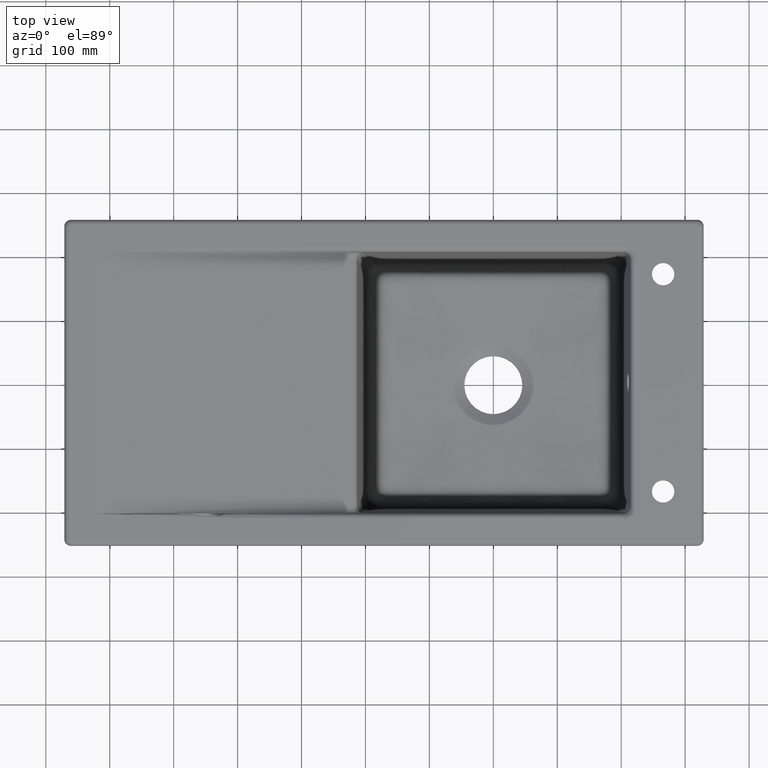
[diagram: clean part render]
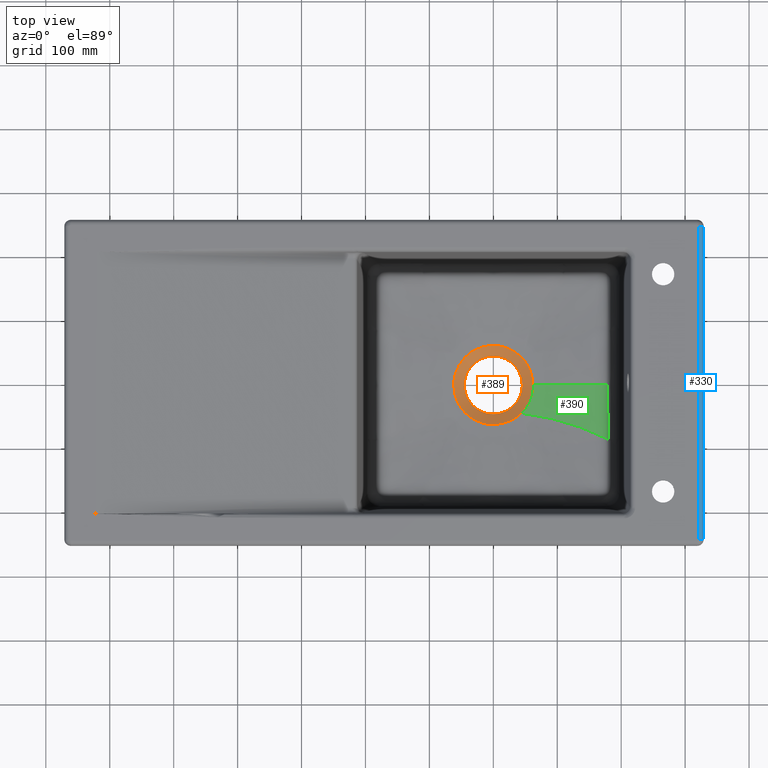
[diagram: same view with three faces highlighted in distinct colors, each labeled with its STEP entity id]
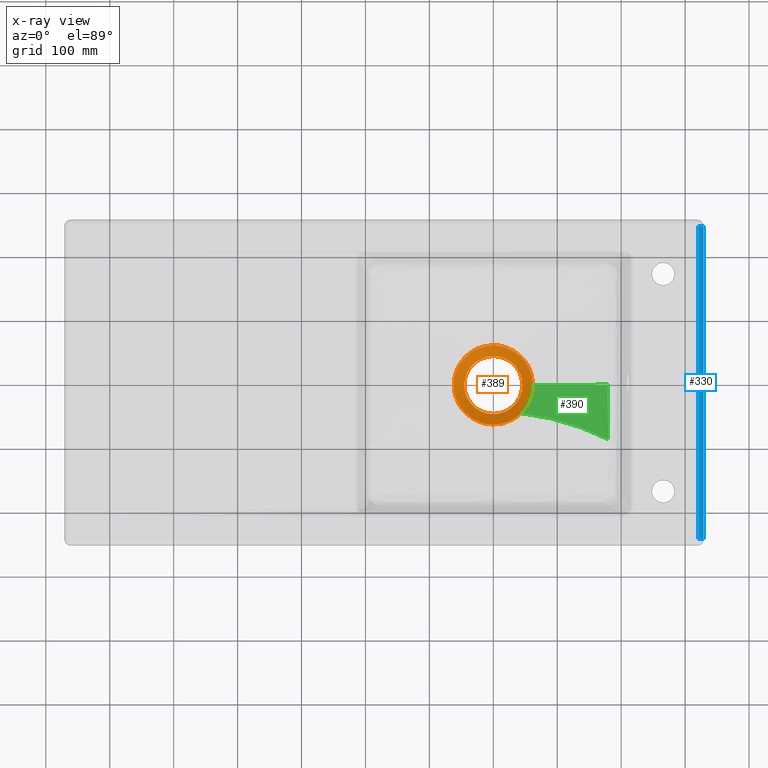
[diagram: x-ray of the same camera — body ghosted, the three highlighted faces saturated]
A machine part, top view with three faces highlighted in distinct colors.
The next image is the same camera in x-ray (body ghosted, the three faces saturated) — at least one of them is partly hidden behind the body in this view.
Their STEP definitions:

[orange] entity #389 — the highlighted conical surface has half-angle 60 deg.
#50=CONICAL_SURFACE('',#3366,64.2143207932127,59.9999999999986);
#304=FACE_BOUND('',#831,.T.);
#305=FACE_BOUND('',#832,.T.);
#389=ADVANCED_FACE('',(#304,#305),#50,.F.);
#831=EDGE_LOOP('',(#1730,#1731,#1732,#1733,#1734,#1735,#1736,#1737,#1738,
#1739,#1740,#1741));
#832=EDGE_LOOP('',(#1742,#1743,#1744));
#1164=B_SPLINE_CURVE_WITH_KNOTS('',3,(#14438,#14439,#14440,#14441,#14442,
#14443),.UNSPECIFIED.,.F.,.F.,(4,2,4),(0.,0.5,1.),.UNSPECIFIED.);
#1165=B_SPLINE_CURVE_WITH_KNOTS('',3,(#14446,#14447,#14448,#14449),
 .UNSPECIFIED.,.F.,.F.,(4,4),(0.,1.),.UNSPECIFIED.);
#1166=B_SPLINE_CURVE_WITH_KNOTS('',3,(#14451,#14452,#14453,#14454,#14455,
#14456,#14457,#14458,#14459,#14460,#14461,#14462,#14463,#14464,#14465,#14466),
 .UNSPECIFIED.,.F.,.F.,(4,2,2,2,2,2,2,4),(0.,0.25,0.374999999999999,0.437499999999999,
0.468749999999999,0.484374999999999,0.499999999999999,1.),.UNSPECIFIED.);
#1167=B_SPLINE_CURVE_WITH_KNOTS('',3,(#14468,#14469,#14470,#14471,#14472,
#14473),.UNSPECIFIED.,.F.,.F.,(4,2,4),(0.,0.5,1.),.UNSPECIFIED.);
#1168=B_SPLINE_CURVE_WITH_KNOTS('',3,(#14475,#14476,#14477,#14478),
 .UNSPECIFIED.,.F.,.F.,(4,4),(0.,1.),.UNSPECIFIED.);
#1169=B_SPLINE_CURVE_WITH_KNOTS('',3,(#14480,#14481,#14482,#14483,#14484,
#14485),.UNSPECIFIED.,.F.,.F.,(4,2,4),(0.,0.5,1.),.UNSPECIFIED.);
#1170=B_SPLINE_CURVE_WITH_KNOTS('',3,(#14487,#14488,#14489,#14490,#14491,
#14492),.UNSPECIFIED.,.F.,.F.,(4,2,4),(0.,0.5,1.),.UNSPECIFIED.);
#1171=B_SPLINE_CURVE_WITH_KNOTS('',3,(#14494,#14495,#14496,#14497),
 .UNSPECIFIED.,.F.,.F.,(4,4),(0.,1.),.UNSPECIFIED.);
#1172=B_SPLINE_CURVE_WITH_KNOTS('',3,(#14499,#14500,#14501,#14502,#14503,
#14504),.UNSPECIFIED.,.F.,.F.,(4,2,4),(0.,0.5,1.),.UNSPECIFIED.);
#1173=B_SPLINE_CURVE_WITH_KNOTS('',3,(#14506,#14507,#14508,#14509,#14510,
#14511),.UNSPECIFIED.,.F.,.F.,(4,2,4),(0.,0.5,1.),.UNSPECIFIED.);
#1174=B_SPLINE_CURVE_WITH_KNOTS('',3,(#14513,#14514,#14515,#14516),
 .UNSPECIFIED.,.F.,.F.,(4,4),(0.,1.),.UNSPECIFIED.);
#1175=B_SPLINE_CURVE_WITH_KNOTS('',3,(#14518,#14519,#14520,#14521,#14522,
#14523),.UNSPECIFIED.,.F.,.F.,(4,2,4),(0.,0.5,1.),.UNSPECIFIED.);
#1176=B_SPLINE_CURVE_WITH_KNOTS('',3,(#14524,#14525,#14526,#14527,#14528,
#14529,#14530,#14531,#14532,#14533,#14534,#14535,#14536,#14537,#14538,#14539,
#14540,#14541,#14542,#14543,#14544,#14545,#14546,#14547,#14548,#14549,#14550,
#14551),.UNSPECIFIED.,.F.,.F.,(4,2,2,2,2,2,2,2,2,2,2,2,2,4),(0.,0.0625000000000001,
0.125,0.1875,0.25,0.375,0.5,0.5625,0.625,0.6875,0.75,0.8125,0.875,1.),
 .UNSPECIFIED.);
#1177=B_SPLINE_CURVE_WITH_KNOTS('',3,(#14554,#14555,#14556,#14557,#14558,
#14559,#14560,#14561,#14562,#14563,#14564,#14565,#14566,#14567),
 .UNSPECIFIED.,.F.,.F.,(4,2,2,2,2,2,4),(0.,0.125,0.25,0.375,0.5,0.75,1.),
 .UNSPECIFIED.);
#1178=B_SPLINE_CURVE_WITH_KNOTS('',3,(#14569,#14570,#14571,#14572,#14573,
#14574,#14575,#14576,#14577,#14578,#14579,#14580,#14581,#14582),
 .UNSPECIFIED.,.F.,.F.,(4,2,2,2,2,2,4),(0.,0.125,0.25,0.375,0.5,0.75,1.),
 .UNSPECIFIED.);
#1730=ORIENTED_EDGE('',*,*,#2874,.T.);
#1731=ORIENTED_EDGE('',*,*,#2875,.T.);
#1732=ORIENTED_EDGE('',*,*,#2876,.T.);
#1733=ORIENTED_EDGE('',*,*,#2877,.T.);
#1734=ORIENTED_EDGE('',*,*,#2878,.T.);
#1735=ORIENTED_EDGE('',*,*,#2879,.T.);
#1736=ORIENTED_EDGE('',*,*,#2880,.T.);
#1737=ORIENTED_EDGE('',*,*,#2881,.T.);
#1738=ORIENTED_EDGE('',*,*,#2882,.T.);
#1739=ORIENTED_EDGE('',*,*,#2883,.T.);
#1740=ORIENTED_EDGE('',*,*,#2884,.T.);
#1741=ORIENTED_EDGE('',*,*,#2885,.T.);
#1742=ORIENTED_EDGE('',*,*,#2886,.F.);
#1743=ORIENTED_EDGE('',*,*,#2887,.F.);
#1744=ORIENTED_EDGE('',*,*,#2888,.F.);
#2485=VERTEX_POINT('',#14444);
#2486=VERTEX_POINT('',#14445);
#2487=VERTEX_POINT('',#14450);
#2488=VERTEX_POINT('',#14467);
#2489=VERTEX_POINT('',#14474);
#2490=VERTEX_POINT('',#14479);
#2491=VERTEX_POINT('',#14486);
#2492=VERTEX_POINT('',#14493);
#2493=VERTEX_POINT('',#14498);
#2494=VERTEX_POINT('',#14505);
#2495=VERTEX_POINT('',#14512);
#2496=VERTEX_POINT('',#14517);
#2497=VERTEX_POINT('',#14552);
#2498=VERTEX_POINT('',#14553);
#2499=VERTEX_POINT('',#14568);
#2874=EDGE_CURVE('',#2485,#2486,#1164,.T.);
#2875=EDGE_CURVE('',#2486,#2487,#1165,.T.);
#2876=EDGE_CURVE('',#2487,#2488,#1166,.T.);
#2877=EDGE_CURVE('',#2488,#2489,#1167,.T.);
#2878=EDGE_CURVE('',#2489,#2490,#1168,.T.);
#2879=EDGE_CURVE('',#2490,#2491,#1169,.T.);
#2880=EDGE_CURVE('',#2491,#2492,#1170,.T.);
#2881=EDGE_CURVE('',#2492,#2493,#1171,.T.);
#2882=EDGE_CURVE('',#2493,#2494,#1172,.T.);
#2883=EDGE_CURVE('',#2494,#2495,#1173,.T.);
#2884=EDGE_CURVE('',#2495,#2496,#1174,.T.);
#2885=EDGE_CURVE('',#2496,#2485,#1175,.T.);
#2886=EDGE_CURVE('',#2497,#2498,#1176,.T.);
#2887=EDGE_CURVE('',#2499,#2497,#1177,.T.);
#2888=EDGE_CURVE('',#2498,#2499,#1178,.T.);
#3366=AXIS2_PLACEMENT_3D('',#14583,#3688,#3689);
#3688=DIRECTION('',(0.,0.,1.));
#3689=DIRECTION('',(1.,0.,0.));
#14438=CARTESIAN_POINT('',(-1.88265974019929E-7,-61.9036886644955,-202.344280509982));
#14439=CARTESIAN_POINT('',(8.36353192122179,-61.9036876009832,-202.344281138686));
#14440=CARTESIAN_POINT('',(16.5378833643363,-60.1847311299929,-202.347243451509));
#14441=CARTESIAN_POINT('',(31.3170872285084,-53.9666881966917,-202.359091445392));
#14442=CARTESIAN_POINT('',(37.9197861210545,-49.4758176032974,-202.367977126451));
#14443=CARTESIAN_POINT('',(43.3707004929845,-44.0843591762912,-202.37982449163));
#14444=CARTESIAN_POINT('',(-1.88265961847955E-7,-61.9036886644952,-202.344280509982));
#14445=CARTESIAN_POINT('',(43.3709574328395,-44.0846185808438,-202.379613693715));
#14446=CARTESIAN_POINT('',(43.371237352179,-44.0849011828994,-202.379384044026));
#14447=CARTESIAN_POINT('',(43.6267926538458,-43.8322006845885,-202.379911765068));
#14448=CARTESIAN_POINT('',(43.88085054016,-43.5779736910981,-202.379865174244));
#14449=CARTESIAN_POINT('',(44.1332600318325,-43.3221309508692,-202.379342362706));
#14450=CARTESIAN_POINT('',(44.1335362637709,-43.3224039341373,-202.37911814388));
#14451=CARTESIAN_POINT('',(44.1338304324636,-43.3226946583929,-202.378879359562));
#14452=CARTESIAN_POINT('',(46.4791952420684,-40.9471791765669,-202.373313450244));
#14453=CARTESIAN_POINT('',(48.8704088795185,-38.1398717415593,-202.368325890522));
#14454=CARTESIAN_POINT('',(52.2636415915543,-33.1791343877657,-202.361712075331));
#14455=CARTESIAN_POINT('',(53.3615459469658,-31.4010818385916,-202.359652057666));
#14456=CARTESIAN_POINT('',(54.917792515254,-28.5412139984453,-202.356778912267));
#14457=CARTESIAN_POINT('',(55.4213845596,-27.5558520940142,-202.355857343984));
#14458=CARTESIAN_POINT('',(56.1484578510668,-26.0295506792861,-202.354529211833));
#14459=CARTESIAN_POINT('',(56.3860933273196,-25.5127451215762,-202.354095537829));
#14460=CARTESIAN_POINT('',(56.7347383363173,-24.7255051228912,-202.353458581891));
#14461=CARTESIAN_POINT('',(56.8496517879593,-24.4610868372878,-202.353248522423));
#14462=CARTESIAN_POINT('',(57.0767526416095,-23.9282486902741,-202.352832921844));
#14463=CARTESIAN_POINT('',(57.2036714979841,-23.6238634178021,-202.352600344085));
#14464=CARTESIAN_POINT('',(60.3726864179708,-15.8870234955181,-202.346784249636));
#14465=CARTESIAN_POINT('',(61.9042364670639,-7.88474771906582,-202.343964236114));
#14466=CARTESIAN_POINT('',(61.904236775166,1.60383890533372E-10,-202.343964058231));
#14467=CARTESIAN_POINT('',(61.9042367751656,5.56406201335751E-8,-202.343964058231));
#14468=CARTESIAN_POINT('',(61.9042367751659,1.60399052698456E-10,-202.343964058231));
#14469=CARTESIAN_POINT('',(61.9042364462802,8.56874357126657,-202.343964248113));
#14470=CARTESIAN_POINT('',(60.1026063185917,16.8308244395143,-202.346875165289));
#14471=CARTESIAN_POINT('',(53.8245179220538,31.5598637729739,-202.358518454228));
#14472=CARTESIAN_POINT('',(49.3594263477548,38.0280111607333,-202.367250825991));
#14473=CARTESIAN_POINT('',(44.133812495999,43.3226769174483,-202.378893925047));
#14474=CARTESIAN_POINT('',(44.1335362640601,43.3224039341804,-202.379118143873));
#14475=CARTESIAN_POINT('',(44.1332600321217,43.3221309509123,-202.3793423627));
#14476=CARTESIAN_POINT('',(43.8808505403715,43.5779736912228,-202.379865174237));
#14477=CARTESIAN_POINT('',(43.6267926539787,43.8322006847939,-202.379911765062));
#14478=CARTESIAN_POINT('',(43.3712373522322,44.0849011831845,-202.379384044019));
#14479=CARTESIAN_POINT('',(43.3709574328926,44.0846185811287,-202.379613693709));
#14480=CARTESIAN_POINT('',(43.3707004930024,44.0843591765407,-202.379824491652));
#14481=CARTESIAN_POINT('',(37.9197861896489,49.4758175339646,-202.367977127349));
#14482=CARTESIAN_POINT('',(31.3170873552541,53.9666881207755,-202.359091446723));
#14483=CARTESIAN_POINT('',(16.5378835063578,60.1847310889079,-202.347243452824));
#14484=CARTESIAN_POINT('',(8.36353201902543,61.9036875998058,-202.344281139551));
#14485=CARTESIAN_POINT('',(-1.88265931367278E-7,61.9036886648624,-202.344280509955));
#14486=CARTESIAN_POINT('',(-1.8826596358268E-7,61.903688664862,-202.344280509955));
#14487=CARTESIAN_POINT('',(1.88265966439054E-7,61.9036886648623,-202.344280509955));
#14488=CARTESIAN_POINT('',(-7.64999565766417,61.9036876895482,-202.344281086485));
#14489=CARTESIAN_POINT('',(-15.4948794565363,60.461655790977,-202.347244944204));
#14490=CARTESIAN_POINT('',(-30.3793719062796,54.5000501477242,-202.359099222018));
#14491=CARTESIAN_POINT('',(-37.4116332234582,49.9757138479702,-202.367989642114));
#14492=CARTESIAN_POINT('',(-43.3706775135529,44.0843359790729,-202.379843343398));
#14493=CARTESIAN_POINT('',(-43.3709574328926,44.0846185811287,-202.379613693709));
#14494=CARTESIAN_POINT('',(-43.3712373522321,44.0849011831844,-202.379384044019));
#14495=CARTESIAN_POINT('',(-43.6267926539788,43.8322006847938,-202.379911765062));
#14496=CARTESIAN_POINT('',(-43.8808505403717,43.5779736912226,-202.379865174237));
#14497=CARTESIAN_POINT('',(-44.1332600321219,43.322130950912,-202.3793423627));
#14498=CARTESIAN_POINT('',(-44.1338124959988,43.3226769174483,-202.378893925047));
#14499=CARTESIAN_POINT('',(-44.1338100762015,43.3226745252987,-202.378895889536));
#14500=CARTESIAN_POINT('',(-49.3594231477386,38.0280097048696,-202.367252732434));
#14501=CARTESIAN_POINT('',(-53.8245145052489,31.5598631716852,-202.35852031706));
#14502=CARTESIAN_POINT('',(-60.102602961566,16.8308247408874,-202.346876969771));
#14503=CARTESIAN_POINT('',(-61.9042333540786,8.5687439072698,-202.343966037856));
#14504=CARTESIAN_POINT('',(-61.9042336757684,-5.56331596816309E-8,-202.343965847669));
#14505=CARTESIAN_POINT('',(-61.9042367751658,-5.56330457016154E-8,-202.343964058231));
#14506=CARTESIAN_POINT('',(-61.9042367751658,5.56406607746614E-8,-202.343964058231));
#14507=CARTESIAN_POINT('',(-61.9042364297653,-9.16367025133379,-202.34396426239));
#14508=CARTESIAN_POINT('',(-59.8537454700193,-17.6954641567136,-202.346873565385));
#14509=CARTESIAN_POINT('',(-53.3639973737805,-32.3324800493704,-202.358510369049));
#14510=CARTESIAN_POINT('',(-48.9430951032937,-38.4521694787327,-202.367237869718));
#14511=CARTESIAN_POINT('',(-44.1338364546742,-43.3227006149232,-202.378874469223));
#14512=CARTESIAN_POINT('',(-44.1332600318336,-43.3221309508681,-202.379342362706));
#14513=CARTESIAN_POINT('',(-44.1332600318336,-43.3221309508681,-202.379342362706));
#14514=CARTESIAN_POINT('',(-43.8808505401608,-43.5779736910975,-202.379865174244));
#14515=CARTESIAN_POINT('',(-43.6267926538463,-43.8322006845883,-202.379911765068));
#14516=CARTESIAN_POINT('',(-43.3712373521791,-44.0849011828996,-202.379384044026));
#14517=CARTESIAN_POINT('',(-43.3706775135,-44.0843359787883,-202.379843343404));
#14518=CARTESIAN_POINT('',(-43.3706775134998,-44.084335978788,-202.379843343405));
#14519=CARTESIAN_POINT('',(-37.4116321984503,-49.9757148618976,-202.367989639708));
#14520=CARTESIAN_POINT('',(-30.379370003194,-54.5000512154374,-202.359099218408));
#14521=CARTESIAN_POINT('',(-15.4948773434547,-60.4616563386847,-202.3472449406));
#14522=CARTESIAN_POINT('',(-7.64999421427678,-61.9036876933712,-202.344281084093));
#14523=CARTESIAN_POINT('',(1.88265956372801E-7,-61.903688664495,-202.344280509982));
#14524=CARTESIAN_POINT('',(3.46944695195361E-15,45.3567920680275,-211.897635714391));
#14525=CARTESIAN_POINT('',(-2.99683279812407,45.3567920680275,-211.897635714391));
#14526=CARTESIAN_POINT('',(-5.94320341609092,45.0608758249211,-211.898705126345));
#14527=CARTESIAN_POINT('',(-11.7405696183107,43.9097546240423,-211.898047465183));
#14528=CARTESIAN_POINT('',(-14.6218532802367,43.0405954393387,-211.896275953556));
#14529=CARTESIAN_POINT('',(-20.1149810096914,40.7641091184574,-211.896062090749));
#14530=CARTESIAN_POINT('',(-22.7186770417809,39.3686418594004,-211.897592721988));
#14531=CARTESIAN_POINT('',(-27.6485495015814,36.0780515671639,-211.897339121883));
#14532=CARTESIAN_POINT('',(-29.9848513555898,34.1647609885166,-211.895530177706));
#14533=CARTESIAN_POINT('',(-36.2605801017327,27.8885950196087,-211.895384736098));
#14534=CARTESIAN_POINT('',(-39.6393419985524,22.8292585563353,-211.895549536245));
#14535=CARTESIAN_POINT('',(-44.1637010316131,11.9171289816015,-211.895562444626));
#14536=CARTESIAN_POINT('',(-45.3559032802043,5.94929081243557,-211.895521984392));
#14537=CARTESIAN_POINT('',(-45.3627981730021,-2.92245686371152,-211.895469968324));
#14538=CARTESIAN_POINT('',(-45.0664557391833,-5.92603838326588,-211.897190651218));
#14539=CARTESIAN_POINT('',(-43.9110786713437,-11.7436406132421,-211.897237995483));
#14540=CARTESIAN_POINT('',(-43.0586144889394,-14.5719414241422,-211.895588974647));
#14541=CARTESIAN_POINT('',(-40.7903409432615,-20.0635015893152,-211.895523732354));
#14542=CARTESIAN_POINT('',(-39.368330335055,-22.7196452604965,-211.89718317421));
#14543=CARTESIAN_POINT('',(-36.0865742668532,-27.6371823516067,-211.89713877266));
#14544=CARTESIAN_POINT('',(-34.2153991821405,-29.9307708052452,-211.895449204583));
#14545=CARTESIAN_POINT('',(-29.984900726705,-34.1678246316744,-211.895513293648));
#14546=CARTESIAN_POINT('',(-27.6871760124419,-36.0477448471309,-211.897322531238));
#14547=CARTESIAN_POINT('',(-22.7758011318619,-39.3349496702638,-211.89760410522));
#14548=CARTESIAN_POINT('',(-20.1278247039291,-40.7579156970124,-211.896067503726));
#14549=CARTESIAN_POINT('',(-11.8830838734998,-44.1773444538666,-211.896370791433));
#14550=CARTESIAN_POINT('',(-5.99245094365111,-45.3567920677067,-211.897635714391));
#14551=CARTESIAN_POINT('',(-6.93889390390723E-15,-45.3567920677067,-211.897635714391));
#14552=CARTESIAN_POINT('',(3.46944695195361E-15,45.3567920680275,-211.897635714391));
#14553=CARTESIAN_POINT('',(-6.93889390390723E-15,-45.3567920677067,-211.897635714391));
#14554=CARTESIAN_POINT('',(45.3567920678671,1.60385593694912E-10,-211.897635714391));
#14555=CARTESIAN_POINT('',(45.3567920678671,2.99553465493257,-211.897635714391));
#14556=CARTESIAN_POINT('',(45.0611289265102,5.94065027945199,-211.898704658256));
#14557=CARTESIAN_POINT('',(43.9109971155661,11.735588870177,-211.898048786942));
#14558=CARTESIAN_POINT('',(43.0426082924653,14.6156515258695,-211.896280709096));
#14559=CARTESIAN_POINT('',(40.7680361989905,20.1069126832888,-211.896043229448));
#14560=CARTESIAN_POINT('',(39.3737382437693,22.7097942398729,-211.897556171804));
#14561=CARTESIAN_POINT('',(36.085911683789,27.6382757090165,-211.897293391531));
#14562=CARTESIAN_POINT('',(34.1741149324592,29.9741642217286,-211.895493740787));
#14563=CARTESIAN_POINT('',(27.9025348221364,36.2492591422015,-211.895474174389));
#14564=CARTESIAN_POINT('',(22.8466397961727,39.6281379596469,-211.895958895935));
#14565=CARTESIAN_POINT('',(11.9412086784092,44.1554345170654,-211.89636242347));
#14566=CARTESIAN_POINT('',(5.98921917181442,45.3567920680275,-211.897635714391));
#14567=CARTESIAN_POINT('',(-4.50979587693612E-15,45.3567920680275,-211.897635714391));
#14568=CARTESIAN_POINT('',(45.3567920678671,1.60385593694912E-10,-211.897635714391));
#14569=CARTESIAN_POINT('',(-6.93889390390723E-15,-45.3567920677067,-211.897635714391));
#14570=CARTESIAN_POINT('',(2.99553465477218,-45.3567920677067,-211.897635714391));
#14571=CARTESIAN_POINT('',(5.94065027929159,-45.0611289263498,-211.898704658256));
#14572=CARTESIAN_POINT('',(11.7355888700167,-43.9109971154057,-211.898048786942));
#14573=CARTESIAN_POINT('',(14.6156515257091,-43.0426082923048,-211.896280709096));
#14574=CARTESIAN_POINT('',(20.1069126831284,-40.7680361988301,-211.896043229448));
#14575=CARTESIAN_POINT('',(22.7097942397125,-39.3737382436089,-211.897556171804));
#14576=CARTESIAN_POINT('',(27.638275708856,-36.0859116836285,-211.897293391531));
#14577=CARTESIAN_POINT('',(29.9741642215682,-34.1741149322987,-211.895493740787));
#14578=CARTESIAN_POINT('',(36.2492591420411,-27.9025348219759,-211.895474174389));
#14579=CARTESIAN_POINT('',(39.6281379594865,-22.8466397960123,-211.895958895935));
#14580=CARTESIAN_POINT('',(44.155434516905,-11.9412086782488,-211.89636242347));
#14581=CARTESIAN_POINT('',(45.3567920678671,-5.98921917165402,-211.897635714391));
#14582=CARTESIAN_POINT('',(45.3567920678671,1.60385593694912E-10,-211.897635714391));
#14583=CARTESIAN_POINT('',(0.,1.60399052698456E-10,-201.010236428561));

[blue] entity #330 — the highlighted cylindrical surface (edge-blend (fillet) strip) has radius 8 mm, axis along (-0, -1, -0).
#195=CYLINDRICAL_SURFACE('',#3340,7.99999999999998);
#243=CIRCLE('',#3338,7.99999999999998);
#244=CIRCLE('',#3339,7.99999999999998);
#330=ADVANCED_FACE('',(#572),#195,.T.);
#572=FACE_OUTER_BOUND('',#769,.T.);
#769=EDGE_LOOP('',(#1418,#1419,#1420,#1421));
#1418=ORIENTED_EDGE('',*,*,#2645,.F.);
#1419=ORIENTED_EDGE('',*,*,#2706,.F.);
#1420=ORIENTED_EDGE('',*,*,#2703,.T.);
#1421=ORIENTED_EDGE('',*,*,#2707,.F.);
#2333=VERTEX_POINT('',#4505);
#2334=VERTEX_POINT('',#4507);
#2378=VERTEX_POINT('',#4866);
#2379=VERTEX_POINT('',#4867);
#2645=EDGE_CURVE('',#2333,#2334,#3100,.T.);
#2703=EDGE_CURVE('',#2378,#2379,#3113,.T.);
#2706=EDGE_CURVE('',#2378,#2333,#243,.T.);
#2707=EDGE_CURVE('',#2334,#2379,#244,.T.);
#3100=LINE('',#4506,#3219);
#3113=LINE('',#4865,#3232);
#3219=VECTOR('',#3551,1.);
#3232=VECTOR('',#3608,1.);
#3338=AXIS2_PLACEMENT_3D('',#4871,#3613,#3614);
#3339=AXIS2_PLACEMENT_3D('',#4872,#3615,#3616);
#3340=AXIS2_PLACEMENT_3D('',#4873,#3617,#3618);
#3551=DIRECTION('',(0.,1.,0.));
#3608=DIRECTION('',(0.,1.,0.));
#3613=DIRECTION('',(5.92271641864617E-15,-1.,5.92271641864701E-15));
#3614=DIRECTION('',(0.,-6.93889390390725E-15,-1.));
#3615=DIRECTION('',(5.92271641864617E-15,1.,5.92271641864701E-15));
#3616=DIRECTION('',(0.,-6.93889390390725E-15,1.));
#3617=DIRECTION('',(-5.92271641864617E-15,-1.,-5.92271641864701E-15));
#3618=DIRECTION('',(0.,6.93889390390725E-15,-1.));
#4505=CARTESIAN_POINT('',(320.999999999999,-244.999999999991,0.));
#4506=CARTESIAN_POINT('',(320.999999999999,0.,0.));
#4507=CARTESIAN_POINT('',(320.999999999999,244.999999999991,0.));
#4865=CARTESIAN_POINT('',(328.999999999999,0.,-8.));
#4866=CARTESIAN_POINT('',(328.999999999999,-244.999999999991,-8.));
#4867=CARTESIAN_POINT('',(328.999999999999,244.999999999991,-8.));
#4871=CARTESIAN_POINT('',(320.999999999999,-244.999999999991,-8.));
#4872=CARTESIAN_POINT('',(320.999999999999,244.999999999991,-8.));
#4873=CARTESIAN_POINT('',(320.999999999999,244.999999999991,-8.));

[green] entity #390 — the highlighted face is a freeform B-spline surface patch.
#73=B_SPLINE_SURFACE_WITH_KNOTS('',3,3,((#14626,#14627,#14628,#14629,#14630,
#14631,#14632),(#14633,#14634,#14635,#14636,#14637,#14638,#14639),(#14640,
#14641,#14642,#14643,#14644,#14645,#14646),(#14647,#14648,#14649,#14650,
#14651,#14652,#14653),(#14654,#14655,#14656,#14657,#14658,#14659,#14660),
(#14661,#14662,#14663,#14664,#14665,#14666,#14667),(#14668,#14669,#14670,
#14671,#14672,#14673,#14674),(#14675,#14676,#14677,#14678,#14679,#14680,
#14681),(#14682,#14683,#14684,#14685,#14686,#14687,#14688),(#14689,#14690,
#14691,#14692,#14693,#14694,#14695),(#14696,#14697,#14698,#14699,#14700,
#14701,#14702),(#14703,#14704,#14705,#14706,#14707,#14708,#14709),(#14710,
#14711,#14712,#14713,#14714,#14715,#14716),(#14717,#14718,#14719,#14720,
#14721,#14722,#14723)),.UNSPECIFIED.,.F.,.F.,.F.,(4,1,1,1,1,1,1,1,1,1,1,
4),(4,1,1,1,4),(0.,0.151981090785215,0.227971636177822,0.30396218157043,
0.455943272355645,0.607924363140859,0.683914908533467,0.759905453926074,
0.835895999318682,0.911886544711289,0.987877090103896,1.),(0.,0.25,0.5,
0.75,1.),.UNSPECIFIED.);
#390=ADVANCED_FACE('',(#628),#73,.F.);
#628=FACE_OUTER_BOUND('',#833,.T.);
#833=EDGE_LOOP('',(#1745,#1746,#1747,#1748));
#1139=B_SPLINE_CURVE_WITH_KNOTS('',3,(#12702,#12703,#12704,#12705,#12706,
#12707,#12708,#12709,#12710,#12711,#12712,#12713,#12714),.UNSPECIFIED.,
 .F.,.F.,(4,1,1,1,1,1,1,1,1,1,4),(0.,0.150343013374769,0.228479647782816,
0.306616282190863,0.462889551006956,0.619162819823049,0.697299454231096,
0.775436088639143,0.85357272304719,0.931709357455236,1.),.UNSPECIFIED.);
#1179=B_SPLINE_CURVE_WITH_KNOTS('',3,(#14584,#14585,#14586,#14587,#14588,
#14589),.UNSPECIFIED.,.F.,.F.,(4,2,4),(0.,0.5,1.),.UNSPECIFIED.);
#1180=B_SPLINE_CURVE_WITH_KNOTS('',3,(#14591,#14592,#14593,#14594,#14595,
#14596,#14597,#14598,#14599,#14600,#14601,#14602,#14603,#14604,#14605,#14606,
#14607,#14608),.UNSPECIFIED.,.F.,.F.,(4,1,1,1,1,1,1,1,1,1,1,1,1,1,1,4),
(0.,0.00623639606332548,0.0831990342017759,0.160161672340227,0.237124310478676,
0.314086948617127,0.391049586755577,0.544974863032478,0.621937501170929,
0.698900139309379,0.775862777447829,0.85282541558628,0.92978805372473,0.968269372793956,
0.987510032328568,1.),.UNSPECIFIED.);
#1181=B_SPLINE_CURVE_WITH_KNOTS('',3,(#14610,#14611,#14612,#14613,#14614,
#14615,#14616,#14617,#14618,#14619,#14620,#14621,#14622,#14623,#14624,#14625),
 .UNSPECIFIED.,.F.,.F.,(4,2,2,2,1,1,2,2,4),(0.,0.249999999999999,0.374999999999999,
0.437499999999998,0.468749999999998,0.484374999999998,0.492187499999998,
0.499999999999998,1.),.UNSPECIFIED.);
#1745=ORIENTED_EDGE('',*,*,#2836,.F.);
#1746=ORIENTED_EDGE('',*,*,#2889,.T.);
#1747=ORIENTED_EDGE('',*,*,#2890,.F.);
#1748=ORIENTED_EDGE('',*,*,#2891,.T.);
#2464=VERTEX_POINT('',#12701);
#2465=VERTEX_POINT('',#12715);
#2500=VERTEX_POINT('',#14590);
#2501=VERTEX_POINT('',#14609);
#2836=EDGE_CURVE('',#2464,#2465,#1139,.T.);
#2889=EDGE_CURVE('',#2464,#2500,#1179,.T.);
#2890=EDGE_CURVE('',#2501,#2500,#1180,.T.);
#2891=EDGE_CURVE('',#2501,#2465,#1181,.T.);
#12701=CARTESIAN_POINT('',(63.1858679577877,2.31111593326468E-30,-201.949998314732));
#12702=CARTESIAN_POINT('',(63.1858679577878,-7.50863350817281E-15,-201.949998314732));
#12703=CARTESIAN_POINT('',(68.9818436396874,-7.20621163702296E-15,-201.526989421706));
#12704=CARTESIAN_POINT('',(77.7888177583028,-6.74661433980821E-15,-200.866456742546));
#12705=CARTESIAN_POINT('',(89.6070952629309,-6.12984161652854E-15,-199.972840680946));
#12706=CARTESIAN_POINT('',(101.653832222786,-5.50113991226928E-15,-199.060413003921));
#12707=CARTESIAN_POINT('',(116.71253259182,-4.71526278194509E-15,-197.923548080587));
#12708=CARTESIAN_POINT('',(131.771251008055,-3.92938565162091E-15,-196.786914877295));
#12709=CARTESIAN_POINT('',(143.817974118648,-3.30068394736165E-15,-195.874271456579));
#12710=CARTESIAN_POINT('',(152.853062360606,-2.82915766916689E-15,-195.190412403385));
#12711=CARTESIAN_POINT('',(161.888368231791,-2.35763139097214E-15,-194.50946880392));
#12712=CARTESIAN_POINT('',(170.545640580144,-1.90591077727609E-15,-193.876160880833));
#12713=CARTESIAN_POINT('',(176.186875201067,-1.61136558964519E-15,-193.415617226796));
#12714=CARTESIAN_POINT('',(178.818422309237,-1.47399582807909E-15,-193.208684012918));
#12715=CARTESIAN_POINT('',(178.818422301757,-6.381641979994E-5,-193.208684013098));
#14584=CARTESIAN_POINT('',(63.1858679577878,7.50863350817281E-15,-201.949998314732));
#14585=CARTESIAN_POINT('',(63.1858648664242,-9.63708447045764,-201.949998723893));
#14586=CARTESIAN_POINT('',(60.980837038619,-18.4835036673966,-201.952850533776));
#14587=CARTESIAN_POINT('',(54.2870879528761,-33.4128878235489,-201.962289141155));
#14588=CARTESIAN_POINT('',(49.8217497477848,-39.5197079104937,-201.968985909792));
#14589=CARTESIAN_POINT('',(45.1415329139632,-44.3179875131438,-201.978138993772));
#14590=CARTESIAN_POINT('',(45.1409982542953,-44.3179210217966,-201.978364768988));
#14591=CARTESIAN_POINT('',(179.512776895722,-85.1143299172735,-193.401892478009));
#14592=CARTESIAN_POINT('',(179.253112047042,-84.9793330908709,-193.431220908677));
#14593=CARTESIAN_POINT('',(175.787079068058,-83.1823106722481,-193.824232530013));
#14594=CARTESIAN_POINT('',(169.065690818083,-79.825078558633,-194.615493398482));
#14595=CARTESIAN_POINT('',(159.211940408661,-75.2757300852653,-195.516277973104));
#14596=CARTESIAN_POINT('',(149.232308600862,-71.0086401416976,-196.406733522188));
#14597=CARTESIAN_POINT('',(139.131489944582,-67.0270389615903,-197.253850366108));
#14598=CARTESIAN_POINT('',(125.509886406011,-62.1040466177476,-198.280842659785));
#14599=CARTESIAN_POINT('',(111.68038625616,-57.7590539648654,-199.193837764541));
#14600=CARTESIAN_POINT('',(97.6768956306132,-54.001800527221,-199.982154765136));
#14601=CARTESIAN_POINT('',(87.0981926611281,-51.4709715862602,-200.512007386619));
#14602=CARTESIAN_POINT('',(76.4495627439178,-49.2382574447139,-200.980523995254));
#14603=CARTESIAN_POINT('',(65.7383669344862,-47.3150647559971,-201.387722759879));
#14604=CARTESIAN_POINT('',(56.7755587880891,-45.923365698053,-201.674233371678));
#14605=CARTESIAN_POINT('',(50.4883753491995,-45.034958234632,-201.846969396479));
#14606=CARTESIAN_POINT('',(47.207983425854,-44.5909014815001,-201.928782197662));
#14607=CARTESIAN_POINT('',(45.724883814184,-44.3945785118256,-201.964971216863));
#14608=CARTESIAN_POINT('',(45.1410026696799,-44.3179253013809,-201.978577958646));
#14609=CARTESIAN_POINT('',(179.512885030844,-85.1143895389248,-193.40186768621));
#14610=CARTESIAN_POINT('',(179.512988769499,-85.1143881672425,-193.401830537792));
#14611=CARTESIAN_POINT('',(179.396363038395,-76.9034288493902,-193.379332427921));
#14612=CARTESIAN_POINT('',(179.298465440851,-69.3995299436424,-193.354446128163));
#14613=CARTESIAN_POINT('',(179.17521000804,-58.9594764131755,-193.320659343537));
#14614=CARTESIAN_POINT('',(179.137593900595,-55.5641227310167,-193.309730831147));
#14615=CARTESIAN_POINT('',(179.086111083539,-50.594877034619,-193.294378978587));
#14616=CARTESIAN_POINT('',(179.069782941669,-48.9590975716585,-193.289431663082));
#14617=CARTESIAN_POINT('',(179.046586550394,-46.5360188901967,-193.282303854058));
#14618=CARTESIAN_POINT('',(179.035313106604,-45.3321275253818,-193.27881295403));
#14619=CARTESIAN_POINT('',(179.022747459227,-43.9408954973731,-193.274873453916));
#14620=CARTESIAN_POINT('',(179.017490379808,-43.3474969367287,-193.273214052403));
#14621=CARTESIAN_POINT('',(179.014014436638,-42.952528958326,-193.272114260462));
#14622=CARTESIAN_POINT('',(179.012541637204,-42.7842467370937,-193.271647341449));
#14623=CARTESIAN_POINT('',(178.885152600426,-28.1111725721502,-193.231143239137));
#14624=CARTESIAN_POINT('',(178.820069455573,-13.9775794402595,-193.208644037706));
#14625=CARTESIAN_POINT('',(178.818422316757,-6.38164213181682E-5,-193.208684012735));
#14626=CARTESIAN_POINT('',(62.4999999999994,7.54442045111158E-15,-202.));
#14627=CARTESIAN_POINT('',(62.4999999999993,-4.09061543078493,-202.));
#14628=CARTESIAN_POINT('',(61.6942196878707,-12.2717422327191,-202.));
#14629=CARTESIAN_POINT('',(58.114692750897,-24.0718941755888,-202.));
#14630=CARTESIAN_POINT('',(52.3018340001286,-34.9469682021622,-202.));
#14631=CARTESIAN_POINT('',(47.0866742372071,-41.3016734110718,-202.));
#14632=CARTESIAN_POINT('',(44.1941738241575,-44.1941738241575,-202.));
#14633=CARTESIAN_POINT('',(68.5246682346469,7.23006959898215E-15,-201.56127444584));
#14634=CARTESIAN_POINT('',(68.556949965032,-4.15165820364265,-201.55892429391));
#14635=CARTESIAN_POINT('',(67.8502266067996,-12.4548750194826,-201.566840894272));
#14636=CARTESIAN_POINT('',(64.5208287272307,-24.4578098078275,-201.616566507482));
#14637=CARTESIAN_POINT('',(59.0539124664697,-35.574211990173,-201.70414283336));
#14638=CARTESIAN_POINT('',(54.1270496819501,-42.1271089069246,-201.787760859057));
#14639=CARTESIAN_POINT('',(51.3910291036445,-45.1305740814263,-201.835878324017));
#14640=CARTESIAN_POINT('',(77.5602408413234,6.75854332078781E-15,-200.883740141438));
#14641=CARTESIAN_POINT('',(77.6396506799027,-4.25514507530733,-200.877751056179));
#14642=CARTESIAN_POINT('',(77.0788610980146,-12.7651651266687,-200.895419578329));
#14643=CARTESIAN_POINT('',(74.1204912836047,-25.1072448749394,-201.010862439554));
#14644=CARTESIAN_POINT('',(69.1681351977086,-36.6200783523757,-201.215245378778));
#14645=CARTESIAN_POINT('',(64.6706901478951,-43.4928677849917,-201.410794056928));
#14646=CARTESIAN_POINT('',(62.1678441153908,-46.6739939736214,-201.523391742336));
#14647=CARTESIAN_POINT('',(89.6070952629309,6.12984161652854E-15,-199.972840680946));
#14648=CARTESIAN_POINT('',(89.7429802271227,-4.43549012487491,-199.962547229435));
#14649=CARTESIAN_POINT('',(89.3636091308469,-13.305890414874,-199.989093857207));
#14650=CARTESIAN_POINT('',(86.8788980423845,-26.2268797796995,-200.170314391254));
#14651=CARTESIAN_POINT('',(82.5902712920494,-38.3947571036498,-200.492935517687));
#14652=CARTESIAN_POINT('',(78.6496122656756,-45.7782173815068,-200.802283330234));
#14653=CARTESIAN_POINT('',(76.4495625600453,-49.238257409308,-200.980524001905));
#14654=CARTESIAN_POINT('',(101.653832222786,5.50113991226928E-15,-199.060413003921));
#14655=CARTESIAN_POINT('',(101.839831027871,-4.65026529146435,-199.046384437414));
#14656=CARTESIAN_POINT('',(101.628850161697,-13.9499237890601,-199.079326594881));
#14657=CARTESIAN_POINT('',(99.5973383576961,-27.5531929286239,-199.311737702525));
#14658=CARTESIAN_POINT('',(95.951064443217,-40.4795374620175,-199.727146681613));
#14659=CARTESIAN_POINT('',(92.5523290683335,-48.4426529635654,-200.126084581967));
#14660=CARTESIAN_POINT('',(90.647491660566,-52.2161078872204,-200.356053177384));
#14661=CARTESIAN_POINT('',(116.71253259182,4.71526278194509E-15,-197.923548080587));
#14662=CARTESIAN_POINT('',(116.947779273072,-4.97977378778932,-197.905744350604));
#14663=CARTESIAN_POINT('',(116.92000378605,-14.9382314569172,-197.941390058931));
#14664=CARTESIAN_POINT('',(115.412586799196,-29.5781319405392,-198.208618126297));
#14665=CARTESIAN_POINT('',(112.525368965387,-43.6367841189522,-198.689605698539));
#14666=CARTESIAN_POINT('',(109.773794394953,-52.4475790773107,-199.152770416617));
#14667=CARTESIAN_POINT('',(108.222603700271,-56.6744315023117,-199.419979359802));
#14668=CARTESIAN_POINT('',(131.771251008055,3.92938565162091E-15,-196.786914877295));
#14669=CARTESIAN_POINT('',(132.033210467235,-5.38962928858655,-196.767153972365));
#14670=CARTESIAN_POINT('',(132.142846008954,-16.1678693833138,-196.799769627694));
#14671=CARTESIAN_POINT('',(131.088659851817,-32.086743827462,-197.065105506249));
#14672=CARTESIAN_POINT('',(128.887461649439,-47.5209140027305,-197.546853780368));
#14673=CARTESIAN_POINT('',(126.732908609421,-57.3421071427019,-198.012294226822));
#14674=CARTESIAN_POINT('',(125.509932913839,-62.1038610540114,-198.281083182643));
#14675=CARTESIAN_POINT('',(143.817974118648,3.30068394736165E-15,-195.874271456579));
#14676=CARTESIAN_POINT('',(144.084682114691,-5.76556605389015,-195.854100551579));
#14677=CARTESIAN_POINT('',(144.270645003872,-17.2958620631535,-195.881326648702));
#14678=CARTESIAN_POINT('',(143.527566983503,-34.3826363709831,-196.12486951575));
#14679=CARTESIAN_POINT('',(141.822633645548,-51.0623173731713,-196.571116104162));
#14680=CARTESIAN_POINT('',(140.109947726907,-61.7888105008404,-197.003749644012));
#14681=CARTESIAN_POINT('',(139.131489926842,-67.0270389447628,-197.253850367498));
#14682=CARTESIAN_POINT('',(152.853062360606,2.82915766916689E-15,-195.190412403385));
#14683=CARTESIAN_POINT('',(153.114184460551,-6.07150018843435,-195.170467783344));
#14684=CARTESIAN_POINT('',(153.33886378414,-18.2138612133814,-195.191230900186));
#14685=CARTESIAN_POINT('',(152.800619815971,-36.2487749145903,-195.404332646225));
#14686=CARTESIAN_POINT('',(151.43868463987,-53.9349834085326,-195.799391463039));
#14687=CARTESIAN_POINT('',(150.037463113892,-65.388834358648,-196.184068721433));
#14688=CARTESIAN_POINT('',(149.232308521931,-71.0086400971911,-196.406733529092));
#14689=CARTESIAN_POINT('',(161.888368231791,2.35763139097214E-15,-194.50946880392));
#14690=CARTESIAN_POINT('',(162.134679758755,-6.4012025929643,-194.491555839639));
#14691=CARTESIAN_POINT('',(162.379179987708,-19.2031764061476,-194.506636775301));
#14692=CARTESIAN_POINT('',(162.016088252331,-38.2575848573077,-194.681978771467));
#14693=CARTESIAN_POINT('',(160.966130892833,-57.0217098973189,-195.010041360304));
#14694=CARTESIAN_POINT('',(159.85480117879,-69.2505338379196,-195.330563481309));
#14695=CARTESIAN_POINT('',(159.211940416928,-75.2757300713932,-195.516277973924));
#14696=CARTESIAN_POINT('',(170.92521819163,1.88610511277739E-15,-193.848393531129));
#14697=CARTESIAN_POINT('',(171.145228074757,-6.75449503425389,-193.831146904527));
#14698=CARTESIAN_POINT('',(171.387001730296,-20.2632265547679,-193.837240332439));
#14699=CARTESIAN_POINT('',(171.166544998364,-40.4077416712464,-193.968140517661));
#14700=CARTESIAN_POINT('',(170.397352214936,-60.3202897094192,-194.220800746236));
#14701=CARTESIAN_POINT('',(169.555974811684,-73.3710206330506,-194.470414260855));
#14702=CARTESIAN_POINT('',(169.06565546082,-79.825056780515,-194.615514358724));
#14703=CARTESIAN_POINT('',(177.425722478682,1.54667977910252E-15,-193.313988441543));
#14704=CARTESIAN_POINT('',(177.618651852897,-7.02621780914574,-193.298536008364));
#14705=CARTESIAN_POINT('',(177.841514133495,-21.0785300424296,-193.295371597551));
#14706=CARTESIAN_POINT('',(177.696347920157,-42.060022294434,-193.37384634797));
#14707=CARTESIAN_POINT('',(177.09991596824,-62.8515583953125,-193.535542465026));
#14708=CARTESIAN_POINT('',(176.431990586661,-76.5288240767815,-193.698820787489));
#14709=CARTESIAN_POINT('',(176.040714585624,-83.3090084140511,-193.794330176494));
#14710=CARTESIAN_POINT('',(180.917481838438,1.36442987149242E-15,-193.045492934606));
#14711=CARTESIAN_POINT('',(181.093477465088,-7.17725007313528,-193.031993962268));
#14712=CARTESIAN_POINT('',(181.301310456109,-21.5316729090244,-193.025441290642));
#14713=CARTESIAN_POINT('',(181.188992003833,-42.9778526562052,-193.076948102354));
#14714=CARTESIAN_POINT('',(180.677477337295,-64.2565539614972,-193.189790733217));
#14715=CARTESIAN_POINT('',(180.097277905907,-78.2803123180824,-193.305909699894));
#14716=CARTESIAN_POINT('',(179.756434200799,-85.2406459229167,-193.374191819757));
#14717=CARTESIAN_POINT('',(181.397923535167,1.33935538994711E-15,-193.00901245312));
#14718=CARTESIAN_POINT('',(181.571542721235,-7.19812567763276,-192.995797999103));
#14719=CARTESIAN_POINT('',(181.777214217231,-21.5943055820665,-192.988809390189));
#14720=CARTESIAN_POINT('',(181.669273186002,-43.104704668081,-193.036647374182));
#14721=CARTESIAN_POINT('',(181.169298529968,-64.4507164233514,-193.142806255538));
#14722=CARTESIAN_POINT('',(180.601072393945,-78.5223351881365,-193.252459441352));
#14723=CARTESIAN_POINT('',(180.267118948158,-85.5075484828392,-193.317006183819));